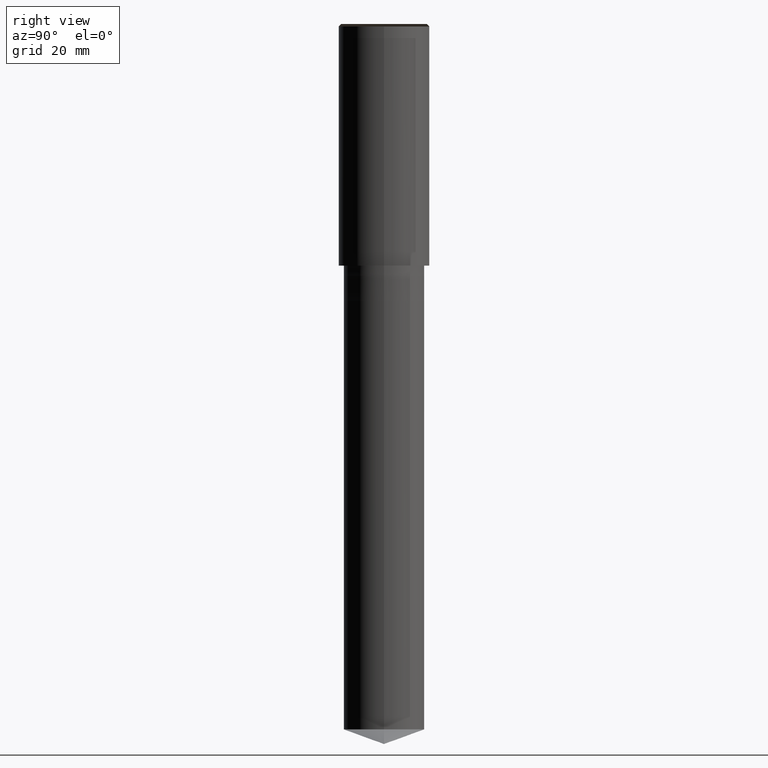
[diagram: clean part render]
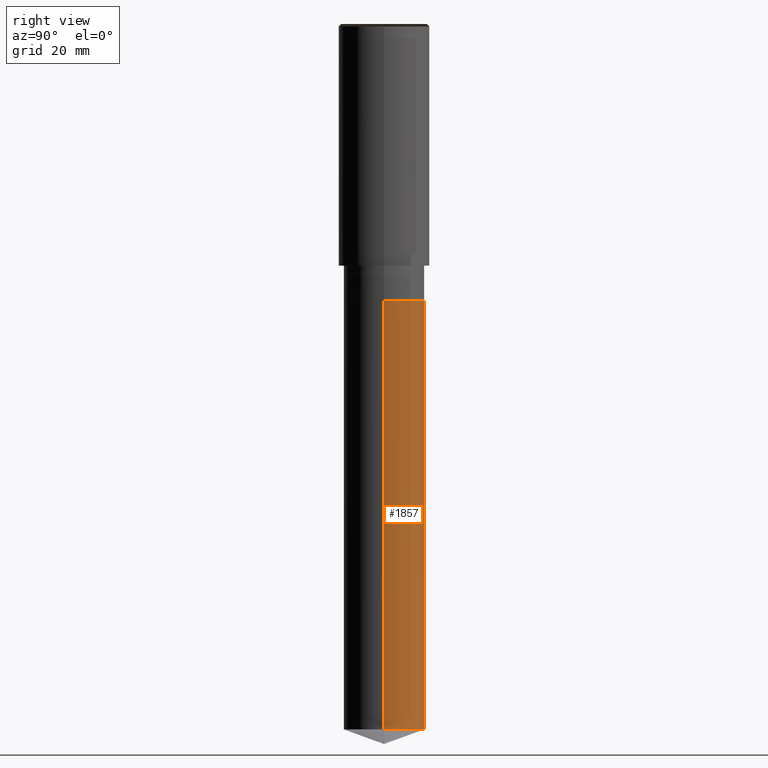
[diagram: same view with one face highlighted and labeled with its STEP entity id]
A machine part, right view. The second image highlights one B-rep face of the part: STEP entity #1857.
In plain terms, the highlighted face is a freeform B-spline surface patch.
Its self-contained STEP definition (entity closure, byte-faithful):
#1759=CARTESIAN_POINT('',(8.0,0.0,-92.08823812587));
#1760=CARTESIAN_POINT('',(8.0,8.0,-92.08823812587));
#1761=CARTESIAN_POINT('',(0.0,8.0,-92.08823812587));
#1762=CARTESIAN_POINT('',(-8.0,8.0,-92.08823812587));
#1763=CARTESIAN_POINT('',(-8.0,0.0,-92.08823812587));
#1764=CARTESIAN_POINT('',(8.0,0.0,-7.0));
#1765=CARTESIAN_POINT('',(8.0,8.0,-7.0));
#1766=CARTESIAN_POINT('',(0.0,8.0,-7.0));
#1767=CARTESIAN_POINT('',(-8.0,8.0,-7.0));
#1768=CARTESIAN_POINT('',(-8.0,0.0,-7.0));
#1838=(
BOUNDED_SURFACE()
B_SPLINE_SURFACE(1,2,(
(#1759,#1760,#1761,#1762,#1763),
(#1764,#1765,#1766,#1767,#1768)
), .UNSPECIFIED.,.F.,.F.,.F.)
B_SPLINE_SURFACE_WITH_KNOTS((2,2),(3,2,3),(
0.0,1.0),(
0.0,0.5,1.0), .UNSPECIFIED.)
GEOMETRIC_REPRESENTATION_ITEM()
RATIONAL_B_SPLINE_SURFACE(((1.0,0.707106781187,1.0,0.707106781187,1.0),
(1.0,0.707106781187,1.0,0.707106781187,1.0)
))
REPRESENTATION_ITEM('')
SURFACE()
);
#1839=(
BOUNDED_CURVE()
B_SPLINE_CURVE(2,(#1763,#1762,#1761,#1760,#1759),.UNSPECIFIED.,.F.,.F.)
B_SPLINE_CURVE_WITH_KNOTS((3,2,3),
(0.0,0.5,1.0),.UNSPECIFIED.)
CURVE()
GEOMETRIC_REPRESENTATION_ITEM()
RATIONAL_B_SPLINE_CURVE((1.0,0.707106781187,1.0,0.707106781187,1.0))
REPRESENTATION_ITEM('')
);
#1840=(
BOUNDED_CURVE()
B_SPLINE_CURVE(1,(#1759,#1764),.UNSPECIFIED.,.F.,.F.)
B_SPLINE_CURVE_WITH_KNOTS((2,2),
(0.0,1.0),.UNSPECIFIED.)
CURVE()
GEOMETRIC_REPRESENTATION_ITEM()
RATIONAL_B_SPLINE_CURVE((1.0,1.0))
REPRESENTATION_ITEM('')
);
#1841=(
BOUNDED_CURVE()
B_SPLINE_CURVE(2,(#1764,#1765,#1766,#1767,#1768),.UNSPECIFIED.,.F.,.F.)
B_SPLINE_CURVE_WITH_KNOTS((3,2,3),
(0.0,0.5,1.0),.UNSPECIFIED.)
CURVE()
GEOMETRIC_REPRESENTATION_ITEM()
RATIONAL_B_SPLINE_CURVE((1.0,0.707106781187,1.0,0.707106781187,1.0))
REPRESENTATION_ITEM('')
);
#1842=(
BOUNDED_CURVE()
B_SPLINE_CURVE(1,(#1768,#1763),.UNSPECIFIED.,.F.,.F.)
B_SPLINE_CURVE_WITH_KNOTS((2,2),
(0.0,1.0),.UNSPECIFIED.)
CURVE()
GEOMETRIC_REPRESENTATION_ITEM()
RATIONAL_B_SPLINE_CURVE((1.0,1.0))
REPRESENTATION_ITEM('')
);
#1843=VERTEX_POINT('',#1759);
#1844=VERTEX_POINT('',#1763);
#1845=VERTEX_POINT('',#1764);
#1846=VERTEX_POINT('',#1768);
#1847=EDGE_CURVE('',#1844,#1843,#1839,.T.);
#1848=EDGE_CURVE('',#1843,#1845,#1840,.T.);
#1849=EDGE_CURVE('',#1845,#1846,#1841,.T.);
#1850=EDGE_CURVE('',#1846,#1844,#1842,.T.);
#1851=ORIENTED_EDGE('',*,*,#1847,.T.);
#1852=ORIENTED_EDGE('',*,*,#1848,.T.);
#1853=ORIENTED_EDGE('',*,*,#1849,.T.);
#1854=ORIENTED_EDGE('',*,*,#1850,.T.);
#1855=EDGE_LOOP('',(#1851,#1852,#1853,#1854));
#1856=FACE_OUTER_BOUND('',#1855,.T.);
#1857=ADVANCED_FACE('',(#1856),#1838,.T.);